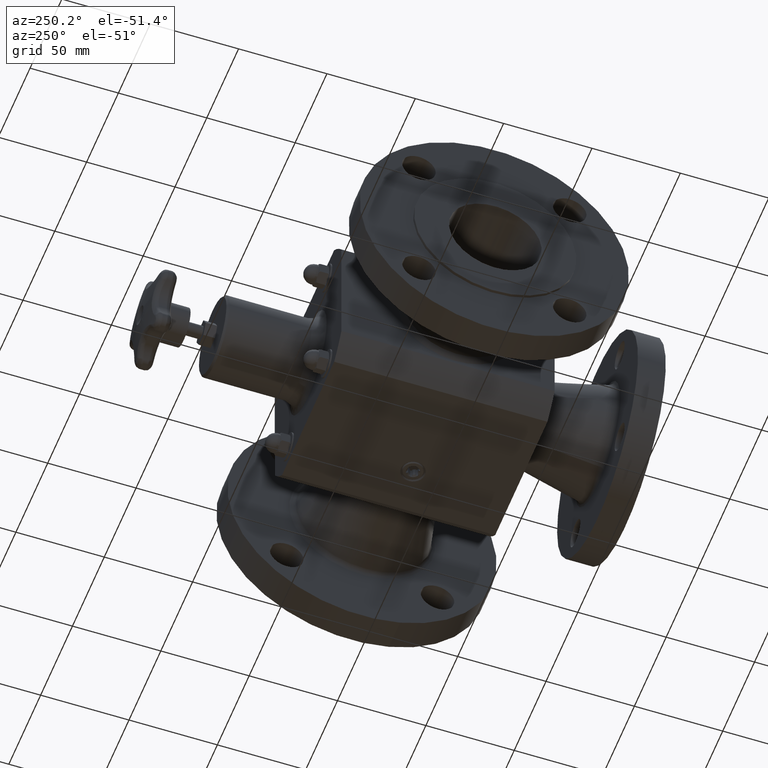
[diagram: clean part render]
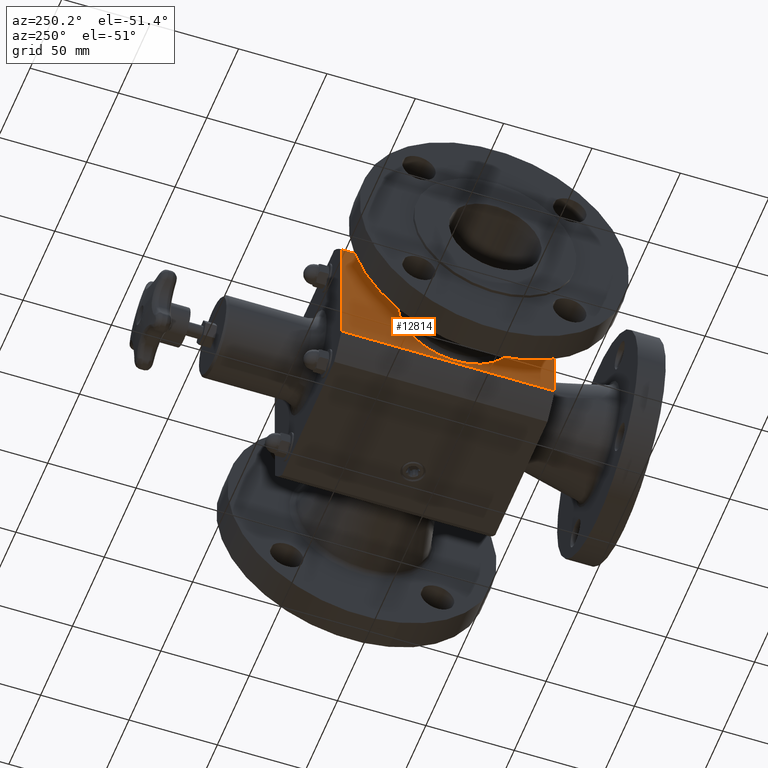
[diagram: same view with one face highlighted and labeled with its STEP entity id]
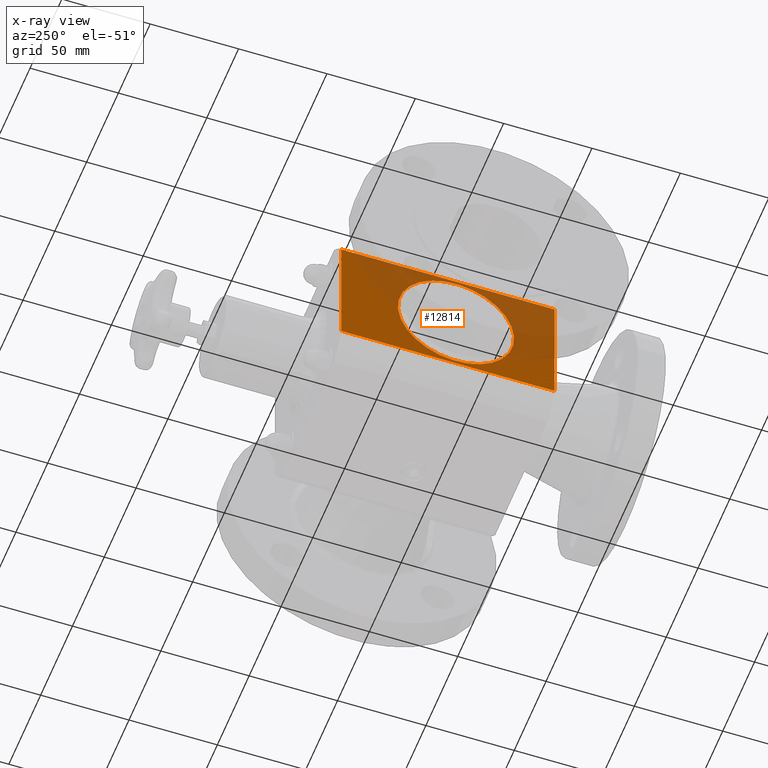
[diagram: x-ray of the same camera — body ghosted, the highlighted face saturated]
A machine part, auxiliary view. The second image highlights one B-rep face of the part: STEP entity #12814.
The next image is the same camera in x-ray: the body ghosted, the highlighted face saturated — about 45% of this face is hidden behind the body in this view.
In plain terms, the highlighted planar face has unit normal (-1, 0, 0).
Its self-contained STEP definition (entity closure, byte-faithful):
#7546=CARTESIAN_POINT('',(-2.062500000000001,1.833810030022056,1.241240793144174));
#7547=VERTEX_POINT('',#7546);
#7548=CARTESIAN_POINT('',(-2.062500000000001,2.197999999999998,1.449917E-015));
#7549=DIRECTION('',(1.0,0.0,0.0));
#7550=DIRECTION('',(0.0,0.0,-1.0));
#7551=AXIS2_PLACEMENT_3D('',#7548,#7549,#7550);
#7552=CIRCLE('',#7551,1.293566017177982);
#7553=EDGE_CURVE('',#7547,#7547,#7552,.T.);
#12753=CARTESIAN_POINT('',(-2.062500000000000,-1.422722E-015,1.368107726021602));
#12754=VERTEX_POINT('',#12753);
#12755=CARTESIAN_POINT('',(-2.062500000000004,4.749999999999998,1.368107726021603));
#12756=VERTEX_POINT('',#12755);
#12757=CARTESIAN_POINT('',(-2.062500000000000,-1.422722E-015,1.368107726021602));
#12758=DIRECTION('',(0.0,1.0,0.0));
#12759=VECTOR('',#12758,4.750000000000000);
#12760=LINE('',#12757,#12759);
#12761=EDGE_CURVE('',#12754,#12756,#12760,.T.);
#12781=CARTESIAN_POINT('',(-2.062500000000000,-1.422722E-015,1.368107726021602));
#12782=DIRECTION('',(-1.0,0.0,0.0));
#12783=DIRECTION('',(0.0,0.0,1.0));
#12784=AXIS2_PLACEMENT_3D('',#12781,#12782,#12783);
#12785=PLANE('',#12784);
#12786=CARTESIAN_POINT('',(-2.062500000000000,-6.381291E-016,-1.368107726021602));
#12787=VERTEX_POINT('',#12786);
#12788=CARTESIAN_POINT('',(-2.062500000000005,4.749999999999998,-1.368107726021601));
#12789=VERTEX_POINT('',#12788);
#12790=CARTESIAN_POINT('',(-2.062500000000000,-6.381291E-016,-1.368107726021602));
#12791=DIRECTION('',(0.0,1.0,0.0));
#12792=VECTOR('',#12791,4.749999999999999);
#12793=LINE('',#12790,#12792);
#12794=EDGE_CURVE('',#12787,#12789,#12793,.T.);
#12795=ORIENTED_EDGE('',*,*,#12794,.F.);
#12796=CARTESIAN_POINT('',(-2.062500000000000,-6.381291E-016,-1.368107726021602));
#12797=DIRECTION('',(0.0,0.0,1.0));
#12798=VECTOR('',#12797,2.736215452043204);
#12799=LINE('',#12796,#12798);
#12800=EDGE_CURVE('',#12787,#12754,#12799,.T.);
#12801=ORIENTED_EDGE('',*,*,#12800,.T.);
#12802=ORIENTED_EDGE('',*,*,#12761,.T.);
#12803=CARTESIAN_POINT('',(-2.062500000000003,4.749999999999998,1.368107726021603));
#12804=DIRECTION('',(0.0,0.0,-1.0));
#12805=VECTOR('',#12804,2.736215452043203);
#12806=LINE('',#12803,#12805);
#12807=EDGE_CURVE('',#12756,#12789,#12806,.T.);
#12808=ORIENTED_EDGE('',*,*,#12807,.T.);
#12809=EDGE_LOOP('',(#12795,#12801,#12802,#12808));
#12810=FACE_OUTER_BOUND('',#12809,.T.);
#12811=ORIENTED_EDGE('',*,*,#7553,.T.);
#12812=EDGE_LOOP('',(#12811));
#12813=FACE_BOUND('',#12812,.T.);
#12814=ADVANCED_FACE('',(#12810,#12813),#12785,.T.);